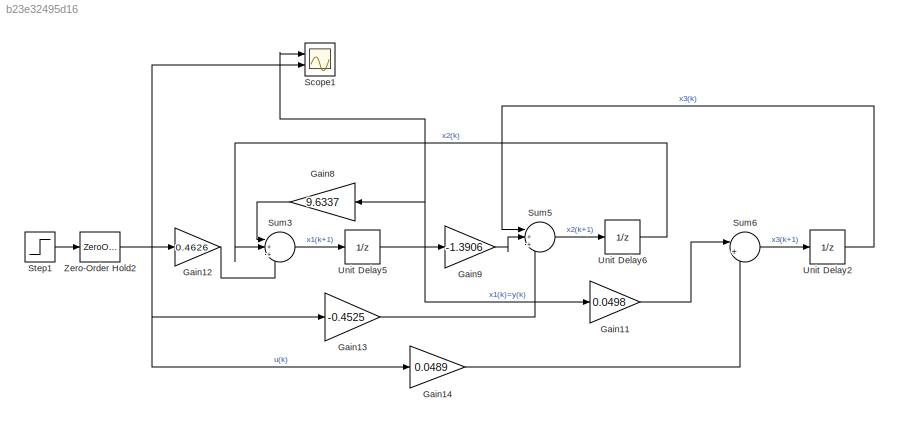
MODEL slx_b23e32495d16
KIND model
CONFIG AbsTol = auto
CONFIG EnableMultiTasking = off
CONFIG FixedStep = auto
CONFIG MaxStep = auto
CONFIG MinStep = auto
CONFIG RelTol = 1e-3
CONFIG SampleTimeConstraint = Unconstrained
CONFIG Solver = VariableStepAuto
CONFIG SolverName = VariableStepAuto
CONFIG StartTime = 0.0
CONFIG StopTime = 10.0
BLOCK [Gain] Gain11
  Gain = 0.0498
  OutDataTypeStr = Inherit: Inherit via internal rule
  ParamDataTypeStr = double
  SaturateOnIntegerOverflow = off
BLOCK [Gain] Gain12
  Gain = 0.4626
  OutDataTypeStr = Inherit: Inherit via internal rule
  ParamDataTypeStr = double
  SaturateOnIntegerOverflow = off
BLOCK [Gain] Gain13
  Gain = -0.4525
  OutDataTypeStr = Inherit: Inherit via internal rule
  ParamDataTypeStr = double
  SaturateOnIntegerOverflow = off
BLOCK [Gain] Gain14
  Gain = 0.0489
  OutDataTypeStr = Inherit: Inherit via internal rule
  ParamDataTypeStr = double
  SaturateOnIntegerOverflow = off
BLOCK [Gain] Gain8
  Gain = 9.6337
  OutDataTypeStr = Inherit: Inherit via internal rule
  ParamDataTypeStr = double
  SaturateOnIntegerOverflow = off
BLOCK [Gain] Gain9
  Gain = -1.3906
  OutDataTypeStr = Inherit: Inherit via internal rule
  ParamDataTypeStr = double
  SaturateOnIntegerOverflow = off
BLOCK [Scope] Scope1
  NumInputPorts = 2
  Ports = [2]
  ScopeSpecificationString = Simulink.scopes.TimeScopeBlockCfg('CurrentConfiguration', extmgr.ConfigurationSet(extmgr.Configuration('Core','General UI',true),extmgr.Configuration('Core','Source UI',true),extmgr.Configuration('Sources','WiredSimulink',true,'DataLoggingVariableName','ScopeData1'),extmgr.Configuration('Visuals','Time Domain',true,'SerializedDisplays',{struct('MinYLimReal','-0.125','MaxYLimReal','1.125','YLabelRe...<+1743ch>
BLOCK [Step] Step1
  SampleTime = 0
BLOCK [Sum] Sum3
  IconShape = round
  InputSameDT = off
  Inputs = |+++
  OutDataTypeStr = Inherit: Inherit via internal rule
  Ports = [3, 1]
  SaturateOnIntegerOverflow = off
BLOCK [Sum] Sum5
  IconShape = round
  InputSameDT = off
  Inputs = |+++
  OutDataTypeStr = Inherit: Inherit via internal rule
  Ports = [3, 1]
  SaturateOnIntegerOverflow = off
BLOCK [Sum] Sum6
  IconShape = round
  InputSameDT = off
  Inputs = |++
  OutDataTypeStr = Inherit: Inherit via internal rule
  Ports = [2, 1]
  SaturateOnIntegerOverflow = off
BLOCK [UnitDelay] Unit Delay2
  InitialCondition = Ini
  InputProcessing = Elements as channels (sample based)
  SampleTime = Tp
BLOCK [UnitDelay] Unit Delay5
  InitialCondition = Ini
  InputProcessing = Elements as channels (sample based)
  SampleTime = Tp
BLOCK [UnitDelay] Unit Delay6
  InitialCondition = Ini
  InputProcessing = Elements as channels (sample based)
  SampleTime = Tp
BLOCK [ZeroOrderHold] Zero-Order Hold2
  SampleTime = Tp
LINE Gain11:1 -> Sum6:1
LINE Gain12:1 -> Sum3:3
LINE Gain13:1 -> Sum5:3
LINE Gain14:1 -> Sum6:2
LINE Gain8:1 -> Sum3:1
LINE Gain9:1 -> Sum5:2
LINE Step1:1 -> Zero-Order Hold2:1
LINE Sum3:1 -> Unit Delay5:1
LINE Sum5:1 -> Unit Delay6:1
LINE Sum6:1 -> Unit Delay2:1
LINE Unit Delay2:1 -> Sum5:1
NET Unit Delay5:1 -> Gain11:1, Gain8:1, Gain9:1, Scope1:1
LINE Unit Delay6:1 -> Sum3:2
NET Zero-Order Hold2:1 -> Gain12:1, Gain13:1, Gain14:1, Scope1:2
note: NET lines group one-source signal fan-out (src -> all destinations, sorted); 1:1 wires keep LINE
